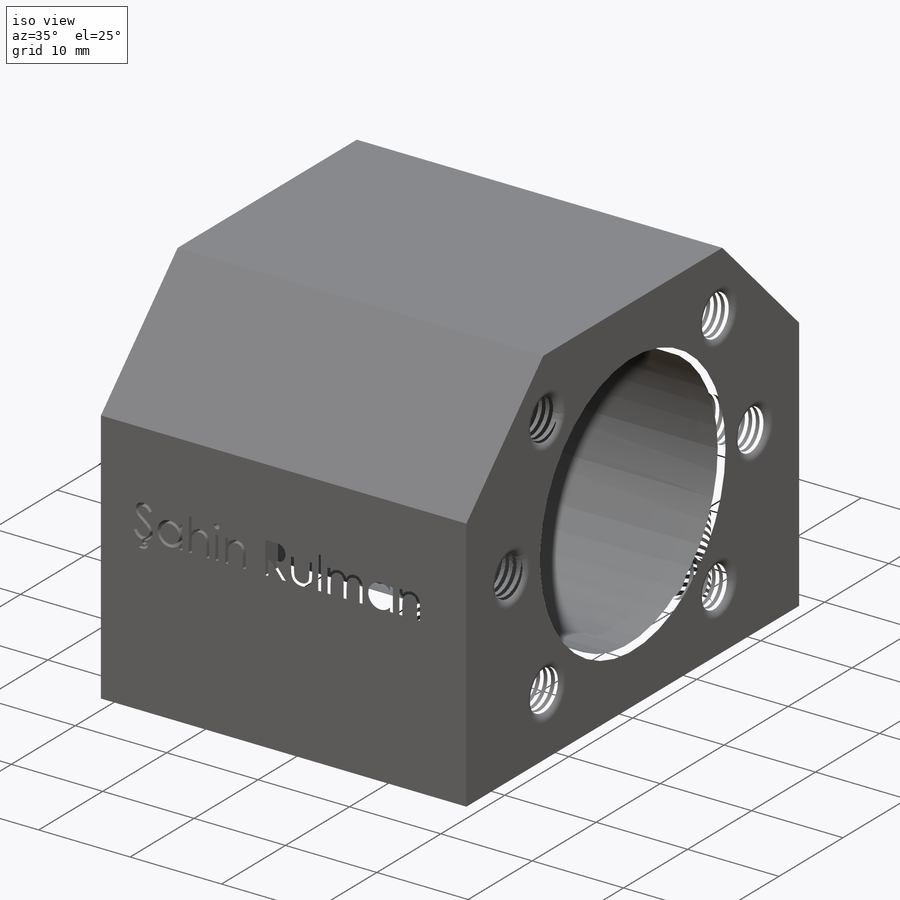
[diagram: iso view]
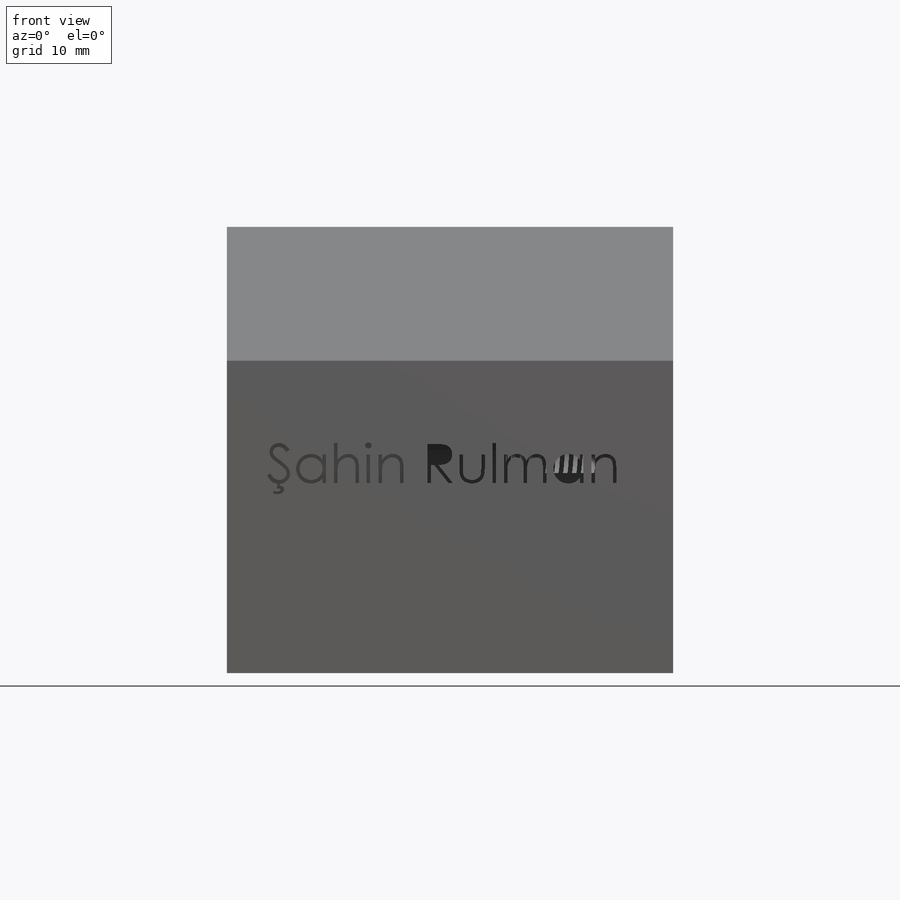
[diagram: front view]
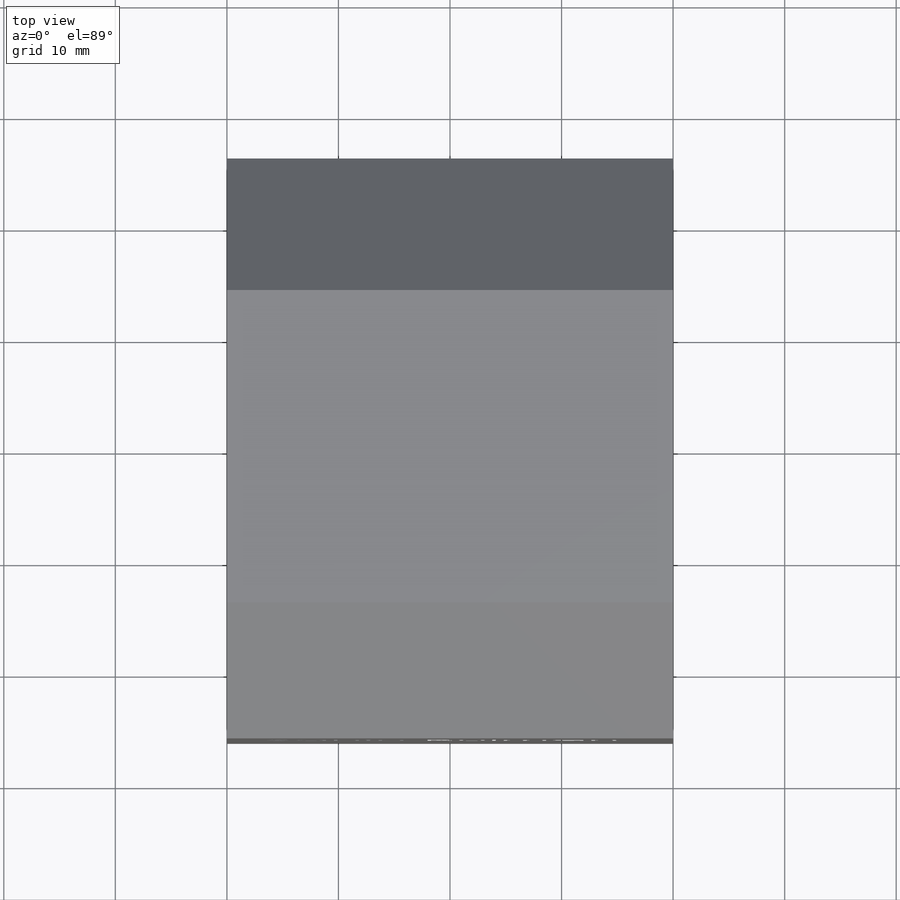
[diagram: top view]
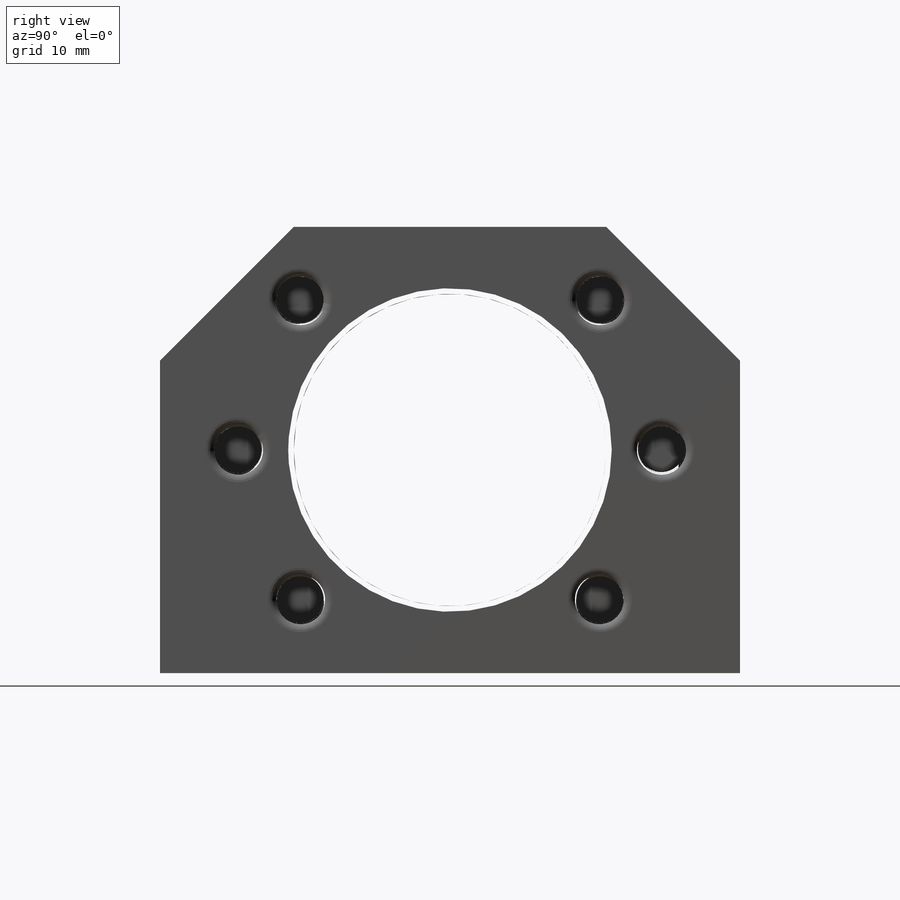
[diagram: right view]
SOLIDWORKS PART (.sldprt)
format: sldprt  version: not decoded by parser v0  size: 4,705,280 bytes
history: native  units: mm
features: sketch x9, cut_extrude x4, mirror x3, fillet x2, helix x2, plane x2, sweep x2, pattern_circular x2, material x1, extrude x1, chamfer x1 (+11 scaffold rows collapsed)
feature tree (40):
  scaffold x11  (default folders/planes/origin — collapsed)
  material  "Material <not specified>"
  sketch  "Sketch2"  dims[c1.D8=28.0mm c1.D1=52.0mm c1.D2=26.0mm c1.D3=40.0mm c1.D4=12.0mm c1.D5=12.0mm c1.D6=12.0mm c1.D7=12.0mm c2.D8=20.0mm c2.D9=6.0mm]
  extrude  "Boss-Extrude1"  Depth=40mm
  sketch  "Sketch3"  dims[c1.D3=4.2mm c1.D2=40.0mm c1.D1=6.0mm c2.D2=~28.437449mm c3.D2=45.0deg c3.D3=~32.461978mm c4.D3=45.0deg c4.D2=19.0mm c5.D2=45.0deg c6.D2=19.0mm c7.D2=45.0deg c8.D2=19.0mm c9.D2=135.0deg]
  cut_extrude  "Cut-Extrude1"  Depth=15mm
  fillet  "Fillet1"  Radius=0.8mm
  sketch  "Sketch11"
  cut_extrude  "Cut-Extrude2"  Depth=2mm
  sketch  "Sketch12"
  cut_extrude  "Cut-Extrude3"  Depth=2mm
  sketch  "Sketch13"  dims[D5=4.2mm D3=8.0mm D1=20.0mm D2=20.0mm D4=24.0mm]
  cut_extrude  "Cut-Extrude4"  Depth=15mm
  fillet  "Fillet2"  Radius=0.8mm
  sketch  "Sketch15"
  helix  "Helix/Spiral4"  Pitch=15mm
  plane  "Plane4"
  sketch  "Sketch16"  dims[D1=0.4mm]
  sweep  "Cut-Sweep4"
  mirror  "Mirror2"
  mirror  "Mirror3"
  chamfer  "Chamfer1"  Distance=0.5mm Angle=45deg
  sketch  "Sketch17"
  helix  "Helix/Spiral5"  Pitch=15mm
  plane  "Plane5"
  sketch  "Sketch18"  dims[D1=0.4mm]
  sweep  "Cut-Sweep5"
  pattern_circular  "CirPattern1"  Count=2 Angle=45deg
  pattern_circular  "CirPattern2"  Count=2 Angle=315deg
  mirror  "Mirror4"
decode coverage: 17 of 26 modeling features carry decoded parameters
note: ~ marks probable driven/reference dimensions
note: suppression state not decoded; provenance and decode notes live in map.json
